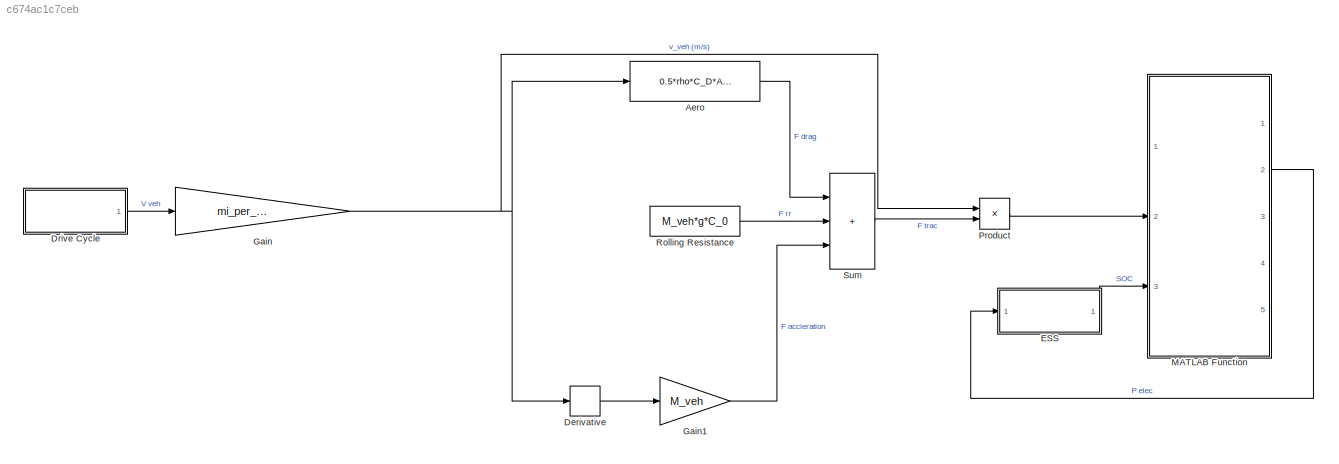
MODEL slx_c674ac1c7ceb
KIND model
CONFIG AbsTol = auto
CONFIG EnableMultiTasking = off
CONFIG FixedStep = auto
CONFIG MaxStep = auto
CONFIG MinStep = auto
CONFIG RelTol = 1e-3
CONFIG SampleTimeConstraint = Unconstrained
CONFIG SolverName = VariableStepAuto
CONFIG StartTime = 0.0
CONFIG StopTime = 10.0
BLOCK [Fcn] Aero
  Expr = 0.5*rho*C_D*A_F*u(1)^2
BLOCK [Derivative] Derivative
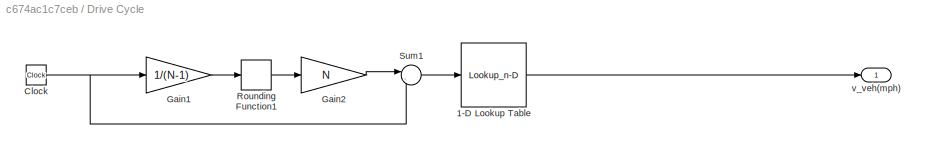
BLOCK [SubSystem] Drive Cycle
  Ports = [0, 1]
  RequestExecContextInheritance = off
BLOCK [Lookup_n-D] Drive Cycle/1-D Lookup Table
  BreakpointsForDimension1 = schedule(:,1)
  InputPortMap = u0
  InternalRulePriority = Speed
  InterpMethod = Cubic spline
  NumberOfTableDimensions = 1
  Ports = [1, 1]
  RndMeth = Simplest
  Table = schedule(:,2)
BLOCK [Clock] Drive Cycle/Clock
BLOCK [Gain] Drive Cycle/Gain1
  Gain = 1/(N-1)
BLOCK [Gain] Drive Cycle/Gain2
  Gain = N
BLOCK [Rounding] Drive Cycle/Rounding Function1
BLOCK [Sum] Drive Cycle/Sum1
  Inputs = |-+
  Ports = [2, 1]
BLOCK [Outport] Drive Cycle/v_veh(mph)
  VectorParamsAs1DForOutWhenUnconnected = off
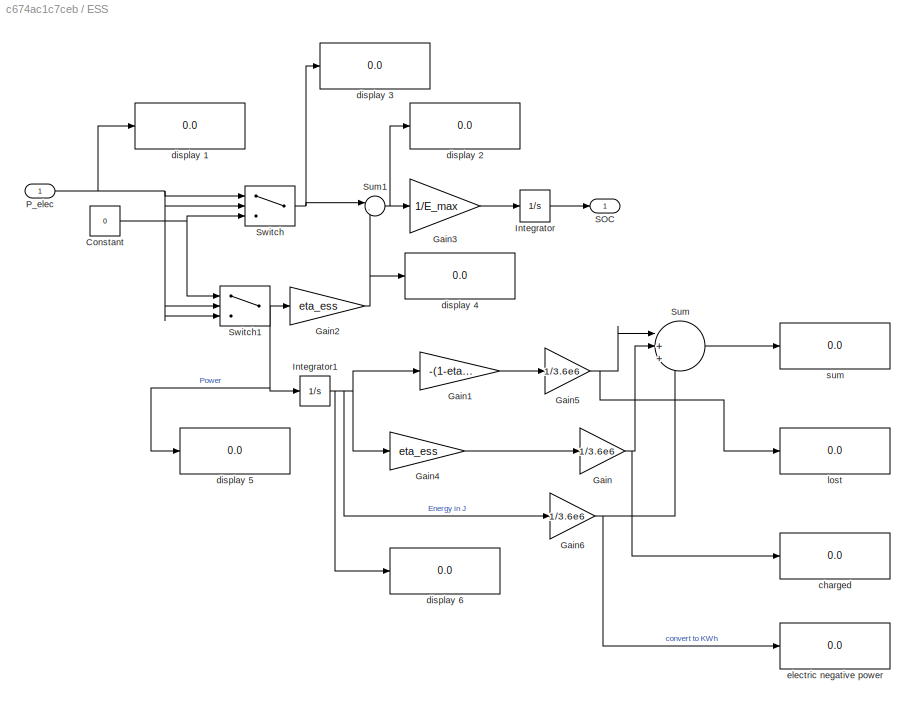
BLOCK [SubSystem] ESS
  Ports = [1, 1]
  RequestExecContextInheritance = off
BLOCK [Constant] ESS/Constant
  Value = 0
BLOCK [Gain] ESS/Gain
  Gain = 1/3.6e6
BLOCK [Gain] ESS/Gain1
  Gain = -(1-eta_ess)
BLOCK [Gain] ESS/Gain2
  Gain = eta_ess
BLOCK [Gain] ESS/Gain3
  Gain = 1/E_max
  OutDataTypeStr = fixdt('double', 'DataTypeOverride', 'Off')
BLOCK [Gain] ESS/Gain4
  Gain = eta_ess
BLOCK [Gain] ESS/Gain5
  Gain = 1/3.6e6
BLOCK [Gain] ESS/Gain6
  Gain = 1/3.6e6
BLOCK [Integrator] ESS/Integrator
  InitialCondition = SOC_init
  LimitOutput = on
  LowerSaturationLimit = 0
  Ports = [1, 1]
  UpperSaturationLimit = 1
BLOCK [Integrator] ESS/Integrator1
  Ports = [1, 1]
BLOCK [Inport] ESS/P_elec
BLOCK [Outport] ESS/SOC
  VectorParamsAs1DForOutWhenUnconnected = off
BLOCK [Sum] ESS/Sum
  Inputs = |+++
  Ports = [3, 1]
BLOCK [Sum] ESS/Sum1
  Inputs = |--
  Ports = [2, 1]
BLOCK [Switch] ESS/Switch
  InputSameDT = off
  OutDataTypeStr = double
  SaturateOnIntegerOverflow = off
BLOCK [Switch] ESS/Switch1
  InputSameDT = off
  OutDataTypeStr = double
  SaturateOnIntegerOverflow = off
BLOCK [Display] ESS/charged
  Decimation = 1
  Ports = [1]
BLOCK [Display] ESS/display 1
  Decimation = 1
  Ports = [1]
BLOCK [Display] ESS/display 2
  Decimation = 1
  Ports = [1]
BLOCK [Display] ESS/display 3
  Decimation = 1
  Ports = [1]
BLOCK [Display] ESS/display 4
  Decimation = 1
  Ports = [1]
BLOCK [Display] ESS/display 5
  Decimation = 1
  Ports = [1]
BLOCK [Display] ESS/display 6
  Decimation = 1
  Ports = [1]
BLOCK [Display] ESS/electric negative power
  Decimation = 1
  Ports = [1]
BLOCK [Display] ESS/lost
  Decimation = 1
  Ports = [1]
BLOCK [Display] ESS/sum
  Decimation = 1
  Ports = [1]
BLOCK [Gain] Gain
  Gain = mi_per_hr_to_m_per_s
BLOCK [Gain] Gain1
  Gain = M_veh
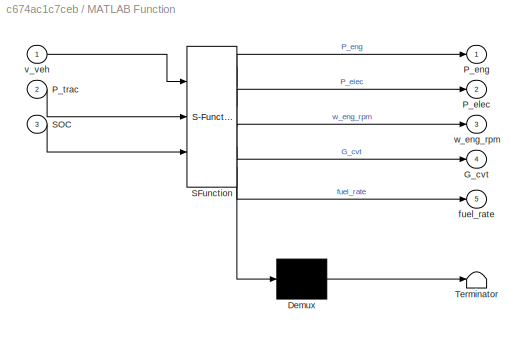
BLOCK [SubSystem] MATLAB Function
  ErrorFcn = Stateflow.Translate.translate
  PermitHierarchicalResolution = ExplicitOnly
  Ports = [3, 5]
  RequestExecContextInheritance = off
  SFBlockType = MATLAB Function
  TreatAsAtomicUnit = on
BLOCK [Demux] MATLAB Function/ Demux 
  Outputs = 1
  Ports = [1, 1]
BLOCK [S-Function] MATLAB Function/ SFunction 
  EnableBusSupport = on
  FunctionName = sf_sfun
  Parameters = eng_map,param
  PortCounts = [3 6]
  Ports = [3, 6]
  SFcnIsStateOwnerBlock = off
  SFunctionDeploymentMode = off
  Tag = Stateflow S-Function 2
BLOCK [Terminator] MATLAB Function/ Terminator 
BLOCK [Outport] MATLAB Function/G_cvt
  Port = 4
  VectorParamsAs1DForOutWhenUnconnected = off
BLOCK [Outport] MATLAB Function/P_elec
  Port = 2
  VectorParamsAs1DForOutWhenUnconnected = off
BLOCK [Outport] MATLAB Function/P_eng
  VectorParamsAs1DForOutWhenUnconnected = off
BLOCK [Inport] MATLAB Function/P_trac
  Port = 2
BLOCK [Inport] MATLAB Function/SOC
  Port = 3
BLOCK [Outport] MATLAB Function/fuel_rate
  Port = 5
  VectorParamsAs1DForOutWhenUnconnected = off
BLOCK [Inport] MATLAB Function/v_veh
BLOCK [Outport] MATLAB Function/w_eng_rpm
  Port = 3
  VectorParamsAs1DForOutWhenUnconnected = off
BLOCK [Product] Product
  Ports = [2, 1]
BLOCK [Constant] Rolling Resistance
  Value = M_veh*g*C_0
BLOCK [Sum] Sum
  IconShape = rectangular
  Inputs = +++
  Ports = [3, 1]
LINE Aero:1 -> Sum:1
LINE Derivative:1 -> Gain1:1
LINE Drive Cycle/1-D Lookup Table:1 -> Drive Cycle/v_veh(mph):1
NET Drive Cycle/Clock:1 -> Drive Cycle/Gain1:1, Drive Cycle/Sum1:2
LINE Drive Cycle/Gain1:1 -> Drive Cycle/Rounding Function1:1
LINE Drive Cycle/Gain2:1 -> Drive Cycle/Sum1:1
LINE Drive Cycle/Rounding Function1:1 -> Drive Cycle/Gain2:1
LINE Drive Cycle/Sum1:1 -> Drive Cycle/1-D Lookup Table:1
LINE Drive Cycle:1 -> Gain:1
NET ESS/Constant:1 -> ESS/Switch1:1, ESS/Switch:3
LINE ESS/Gain1:1 -> ESS/Gain5:1
NET ESS/Gain2:1 -> ESS/Sum1:2, ESS/display 4:1
LINE ESS/Gain3:1 -> ESS/Integrator:1
LINE ESS/Gain4:1 -> ESS/Gain:1
NET ESS/Gain5:1 -> ESS/Sum:1, ESS/lost:1
NET ESS/Gain6:1 -> ESS/Sum:3, ESS/electric negative power:1
NET ESS/Gain:1 -> ESS/Sum:2, ESS/charged:1
NET ESS/Integrator1:1 -> ESS/Gain1:1, ESS/Gain4:1, ESS/Gain6:1, ESS/display 6:1
LINE ESS/Integrator:1 -> ESS/SOC:1
NET ESS/P_elec:1 -> ESS/Switch1:2, ESS/Switch1:3, ESS/Switch:1, ESS/Switch:2, ESS/display 1:1
NET ESS/Sum1:1 -> ESS/Gain3:1, ESS/display 2:1
LINE ESS/Sum:1 -> ESS/sum:1
NET ESS/Switch1:1 -> ESS/Gain2:1, ESS/Integrator1:1, ESS/display 5:1
NET ESS/Switch:1 -> ESS/Sum1:1, ESS/display 3:1
LINE ESS:1 -> MATLAB Function:3
LINE Gain1:1 -> Sum:3
NET Gain:1 -> Aero:1, Derivative:1, Product:1
LINE MATLAB Function:2 -> ESS:1
LINE Product:1 -> MATLAB Function:2
LINE Rolling Resistance:1 -> Sum:2
LINE Sum:1 -> Product:2
note: NET lines group one-source signal fan-out (src -> all destinations, sorted); 1:1 wires keep LINE
CHART MATLAB Function states=1 transitions=1
  STATE_LABEL 'eML_blk_kernel()'
  STATE_LABEL 'SCRIPT:\nfunction [P_eng, P_elec, w_eng_rpm, G_cvt, fuel_rate] = fcn(v_veh, P_trac, SOC, param, eng_map)\n%function [P_eng, P_elec, w_eng_rpm, G_cvt, fuel_rate] = fcn(v_veh, P_trac, SOC, param, eng_map)\n%function [P_eng, P_elec, w_eng_rpm, G_cvt, fuel_rate] = fcn(v_veh, P_trac, SOC, param, eng_map)\n%#codegen\n%inputs:\n    % v_veh, m/s\n    % P_trac, W\n    % SOC\n    % param, structure of parameters\n   ...<+2825ch>'
CHART  states=0 transitions=0
